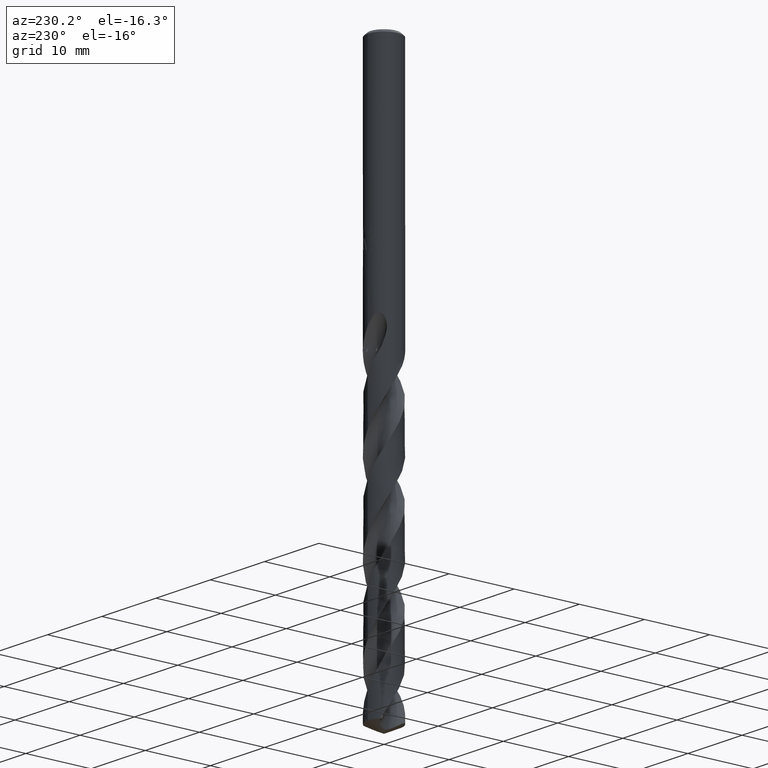
[diagram: clean part render]
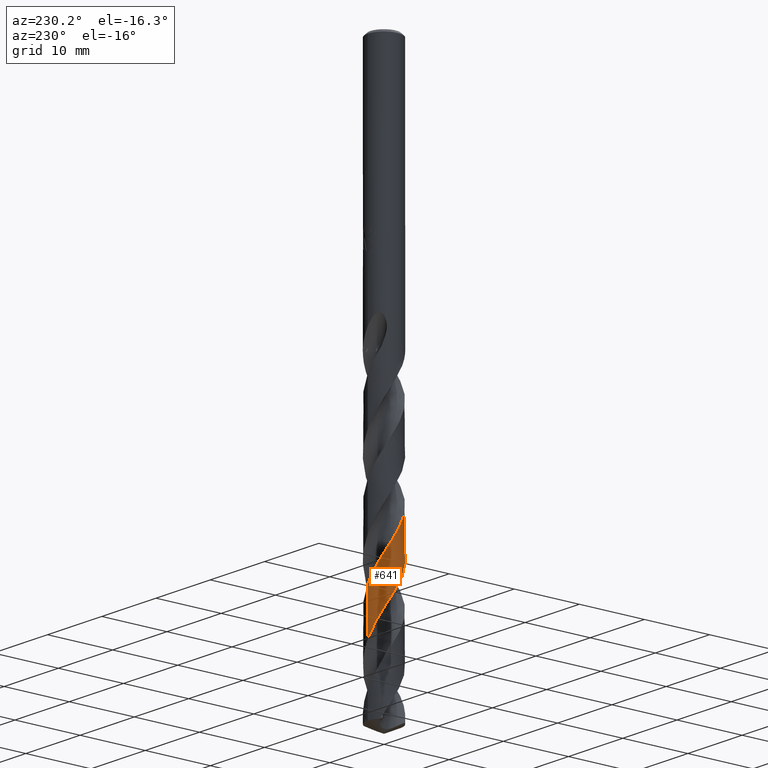
[diagram: same view with one face highlighted and labeled with its STEP entity id]
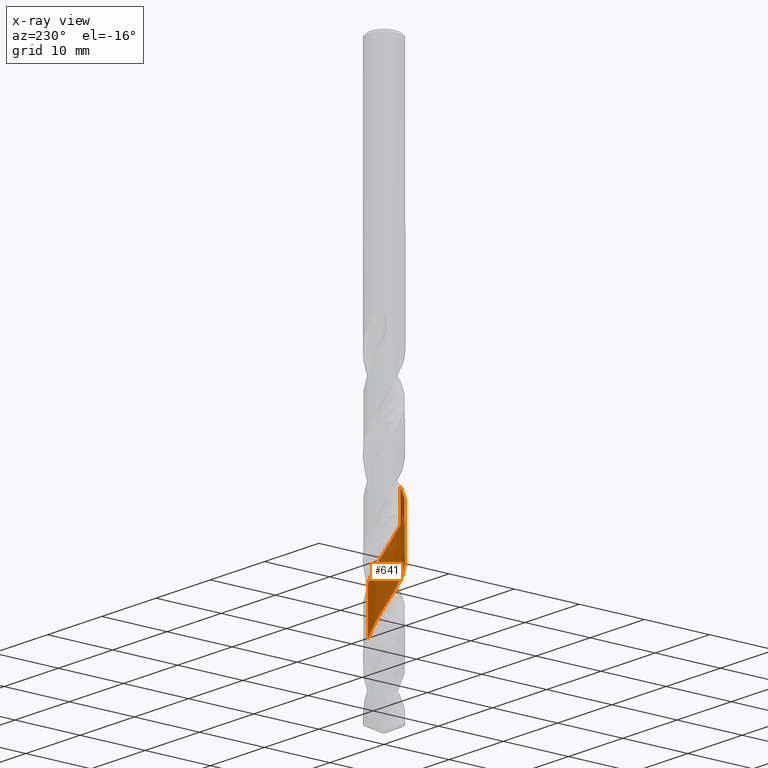
[diagram: x-ray of the same camera — body ghosted, the highlighted face saturated]
A machine part, auxiliary view. The second image highlights one B-rep face of the part: STEP entity #641.
The next image is the same camera in x-ray: the body ghosted, the highlighted face saturated — about 0% of this face is hidden behind the body in this view.
In plain terms, the highlighted conical surface has half-angle 0 deg.
Its self-contained STEP definition (entity closure, byte-faithful):
#325=VERTEX_POINT('',#826);
#335=EDGE_CURVE('',#635,#569,#837,.T.);
#425=EDGE_CURVE('',#569,#517,#937,.T.);
#517=VERTEX_POINT('',#1039);
#569=VERTEX_POINT('',#1093);
#571=EDGE_CURVE('',#517,#325,#1095,.T.);
#635=VERTEX_POINT('',#1167);
#641=ADVANCED_FACE('',(#1174),#1175,.T.);
#727=EDGE_CURVE('',#325,#635,#1266,.T.);
#826=CARTESIAN_POINT('',(6.06419916870673E-015,2.49997813426346,-74.8122386920678));
#837=LINE('',#2709,#2710);
#937=B_SPLINE_CURVE_WITH_KNOTS('',3,(#4323,#4324,#4325,#4326,#4327,#4328,#4329,#4330,#4331,#4332,#4333,#4334,#4335,#4336,#4337,#4338,#4339,#4340,#4341,#4342,#4343,#4344,#4345,#4346,#4347,#4348,#4349,#4350,#4351,#4352,#4353,#4354,#4355,#4356,#4357,#4358,#4359,#4360,#4361,#4362,#4363,#4364,#4365,#4366,#4367,#4368,#4369,#4370,#4371,#4372,#4373,#4374,#4375,#4376,#4377,#4378,#4379,#4380,#4381,#4382,#4383,#4384,#4385,#4386,#4387,#4388,#4389,#4390,#4391,#4392,#4393,#4394,#4395,#4396,#4397,#4398,#4399,#4400,#4401,#4402,#4403,#4404,#4405,#4406,#4407,#4408,#4409,#4410,#4411,#4412,#4413,#4414,#4415,#4416,#4417,#4418,#4419,#4420,#4421,#4422,#4423,#4424,#4425,#4426,#4427,#4428,#4429,#4430,#4431,#4432,#4433,#4434,#4435,#4436,#4437,#4438,#4439,#4440,#4441,#4442,#4443,#4444,#4445,#4446,#4447,#4448,#4449,#4450,#4451,#4452,#4453,#4454,#4455,#4456,#4457,#4458,#4459,#4460,#4461,#4462,#4463,#4464,#4465,#4466,#4467,#4468,#4469,#4470,#4471,#4472,#4473,#4474,#4475,#4476,#4477,#4478,#4479,#4480,#4481,#4482,#4483,#4484,#4485,#4486,#4487,#4488,#4489,#4490,#4491,#4492,#4493,#4494,#4495,#4496,#4497,#4498,#4499,#4500,#4501,#4502,#4503,#4504),.UNSPECIFIED.,.F.,.F.,(4,2,2,2,2,2,2,2,2,2,2,2,2,2,2,2,2,2,2,2,2,2,2,2,2,2,2,2,2,2,2,2,2,2,2,2,2,2,2,2,2,2,2,2,2,2,2,2,2,2,2,2,2,2,2,2,2,2,2,2,2,2,2,2,2,2,2,2,2,2,2,2,2,2,2,2,2,2,2,2,2,2,2,2,2,2,2,2,2,2,4),(0.0,0.130197631597293,0.177790375418525,0.203528378654914,0.220477773872273,0.234485518982447,0.245967376818644,0.255309320129475,0.262862450857812,0.268940526818085,0.273826370375434,0.277656988226119,0.28040462139779,0.282358492877119,0.283748032503972,0.558711848054427,0.620112229035758,0.66020050533253,0.692524611861151,0.729355097996615,0.792330242652871,0.833643491150822,0.90136712810871,1.15381638451864,1.40619879144719,1.58774943225116,1.67380145157983,1.85338326381108,2.29506274989266,4.13542113649811,4.96334490265507,5.13842884308801,6.44867895445249,6.90062768348101,8.31110242535678,8.66154688165764,9.47830686493295,9.91669056713091,10.3010288166517,11.0687177591685,11.487140497879,11.9325918875694,13.3467270692174,13.5235617743511,14.7891882667677,15.6595893505036,16.4757748797086,17.4184916380108,18.2403896256352,18.6566947326735,20.0998663479402,20.268239373517,21.5913512422743,22.009969477056,23.451942533556,23.6204932312231,24.9415752328202,25.3615535010622,26.8008522597422,26.9698694260146,28.2850005759543,28.7098669672697,30.1405153868371,30.3115955703709,31.6115076259884,32.0517969428733,33.46757652367,33.6426916309841,34.9139361878587,35.7635147679752,36.5774703216238,37.5276410399712,38.3879143149921,38.7797382426625,39.5339938987102,39.9728243202163,40.416947235172,41.8283479136796,42.004411793605,43.2686182732748,44.2203228609047,45.0403307403411,45.4528708047033,46.9002222196363,46.9837916618276,48.1840259256829,49.1956678615136,49.9663908452199,50.5464318562699,51.4202888370663,52.2992951524614),.UNSPECIFIED.);
#1039=CARTESIAN_POINT('',(2.63596050081013E-012,2.49996328291561,-68.0052376304444));
#1093=CARTESIAN_POINT('',(-3.39961717213199E-015,-2.49993510164426,-55.0885686660225));
#1095=LINE('',#6039,#6040);
#1167=CARTESIAN_POINT('',(2.61323161921781E-014,-2.49994995181934,-61.8950321944105));
#1174=FACE_OUTER_BOUND('',#6381,.T.);
#1175=CONICAL_SURFACE('',#6382,2.49995,2.18177545767606E-006);
#1266=B_SPLINE_CURVE_WITH_KNOTS('',3,(#8121,#8122,#8123,#8124,#8125,#8126,#8127,#8128,#8129,#8130,#8131,#8132,#8133,#8134,#8135,#8136,#8137,#8138,#8139,#8140,#8141,#8142,#8143,#8144,#8145,#8146,#8147,#8148,#8149,#8150,#8151,#8152,#8153,#8154,#8155,#8156,#8157,#8158,#8159,#8160,#8161,#8162,#8163,#8164,#8165,#8166,#8167,#8168,#8169,#8170,#8171,#8172,#8173,#8174,#8175,#8176,#8177,#8178,#8179,#8180,#8181,#8182,#8183,#8184,#8185,#8186,#8187,#8188,#8189,#8190,#8191,#8192,#8193,#8194,#8195,#8196,#8197,#8198,#8199,#8200,#8201,#8202,#8203,#8204,#8205,#8206,#8207,#8208,#8209,#8210,#8211,#8212,#8213,#8214,#8215,#8216,#8217,#8218,#8219,#8220,#8221,#8222,#8223,#8224,#8225,#8226,#8227,#8228,#8229,#8230,#8231,#8232,#8233,#8234,#8235,#8236,#8237,#8238,#8239,#8240,#8241,#8242,#8243,#8244,#8245,#8246,#8247,#8248,#8249,#8250,#8251,#8252,#8253,#8254,#8255,#8256,#8257,#8258,#8259,#8260,#8261,#8262,#8263,#8264,#8265,#8266,#8267,#8268,#8269,#8270,#8271,#8272),.UNSPECIFIED.,.F.,.F.,(4,2,2,2,2,2,2,2,2,2,2,2,2,2,2,2,2,2,2,2,2,2,2,2,2,2,2,2,2,2,2,2,2,2,2,2,2,2,2,2,2,2,2,2,2,2,2,2,2,2,2,2,2,2,2,2,2,2,2,2,2,2,2,2,2,2,2,2,2,2,2,2,2,2,2,4),(0.0,0.843083036860588,1.66804282445784,2.51310420094247,3.36250948353427,3.57473575263601,4.20621494279439,5.05257127614349,5.89785712989971,6.74385601963546,7.5918302444258,8.39977143285258,9.25254181030798,10.6686810287159,10.7272746588148,11.575739021556,12.0032047005457,12.8123644906255,13.6553569071975,14.4955106262557,15.3378687253484,16.1806478066286,17.0056956403603,17.8521640919949,18.6591214785344,19.5098573303961,20.860202957894,21.0456268163275,22.6323398870029,22.7119034527559,23.6628279853309,24.1115032277236,24.7998938984736,25.6840532398659,26.4218651969014,27.1475165215694,27.576667590082,28.2372125115376,29.0830022235292,29.9283103887265,30.7721237465979,31.6200638698542,32.4168024920405,33.2700916043716,34.6445708681989,34.8475123917744,35.8446680852979,36.6982869442173,38.0325926262055,38.2387508842362,39.0559557685727,39.486589187036,40.3055398471277,41.1548327724152,42.001099703417,42.8865140762626,43.7701736690633,44.6594901591196,45.4755241083576,46.3641190384269,47.2069840287452,47.8579505574661,49.2243268577386,49.7335638821883,50.6245422306346,51.8853836984474,52.205447066137,52.5524571176508,52.7472785827703,52.8413427042817,52.8776550400333,52.9128715006063,52.9617799805844,53.0794527068834,53.2493143121959,53.4170217836426),.UNSPECIFIED.);
#2709=CARTESIAN_POINT('',(3.0619483779913E-016,-2.49995,-61.9171154273063));
#2710=VECTOR('',#8698,1.0);
#4323=CARTESIAN_POINT('',(-1.73762264421359,1.79726670554439,-39.005));
#4324=CARTESIAN_POINT('',(-1.72221670661323,1.81216149650025,-39.042739816691));
#4325=CARTESIAN_POINT('',(-1.70656102461707,1.82691528511933,-39.0805299842278));
#4326=CARTESIAN_POINT('',(-1.68477385876549,1.84691666772539,-39.1320841262693));
#4327=CARTESIAN_POINT('',(-1.6789060842834,1.85225247359187,-39.1458701178836));
#4328=CARTESIAN_POINT('',(-1.6697996599733,1.86045409263797,-39.16710309689));
#4329=CARTESIAN_POINT('',(-1.66659219316597,1.8633279314581,-39.1745512616361));
#4330=CARTESIAN_POINT('',(-1.66125188766608,1.86808786802699,-39.1869001820111));
#4331=CARTESIAN_POINT('',(-1.65912641310457,1.86997586785116,-39.1918015907514));
#4332=CARTESIAN_POINT('',(-1.65523448015805,1.87342108110298,-39.200751411721));
#4333=CARTESIAN_POINT('',(-1.65346990458892,1.87497868468534,-39.2047998386516));
#4334=CARTESIAN_POINT('',(-1.65025218066674,1.8778109045013,-39.2121649762184));
#4335=CARTESIAN_POINT('',(-1.6488003483175,1.87908581774932,-39.215481772523));
#4336=CARTESIAN_POINT('',(-1.64616271840737,1.88139661038003,-39.2214959993936));
#4337=CARTESIAN_POINT('',(-1.6449778217933,1.88243270842696,-39.2241935327113));
#4338=CARTESIAN_POINT('',(-1.64283190381679,1.88430556598918,-39.2290712419415));
#4339=CARTESIAN_POINT('',(-1.64187148763677,1.88514248135961,-39.2312515114553));
#4340=CARTESIAN_POINT('',(-1.64013624782503,1.88665225092974,-39.2351857053183));
#4341=CARTESIAN_POINT('',(-1.63936182354781,1.887325212978,-39.2369397046548));
#4342=CARTESIAN_POINT('',(-1.6379636056153,1.88853873047696,-39.2401032795015));
#4343=CARTESIAN_POINT('',(-1.63734007001041,1.88907935808849,-39.2415129099145));
#4344=CARTESIAN_POINT('',(-1.63622685223591,1.89004359179572,-39.2440274816334));
#4345=CARTESIAN_POINT('',(-1.63573735003914,1.8904672504433,-39.2451324665869));
#4346=CARTESIAN_POINT('',(-1.63489625413791,1.89119463795862,-39.2470298913139));
#4347=CARTESIAN_POINT('',(-1.63454479837524,1.89149840902178,-39.247822368982));
#4348=CARTESIAN_POINT('',(-1.63394317133336,1.89201811570657,-39.2491783099705));
#4349=CARTESIAN_POINT('',(-1.63369307208016,1.8922340737195,-39.2497417939562));
#4350=CARTESIAN_POINT('',(-1.63326498409915,1.89260357491047,-39.2507059733344));
#4351=CARTESIAN_POINT('',(-1.63308703161424,1.89275712958944,-39.2511066796655));
#4352=CARTESIAN_POINT('',(-1.59768827460311,1.92329390340581,-39.3307973432858));
#4353=CARTESIAN_POINT('',(-1.56173305937483,1.95263587298223,-39.4079897390383));
#4354=CARTESIAN_POINT('',(-1.51529937822348,1.9883379022199,-39.5035335497319));
#4355=CARTESIAN_POINT('',(-1.50676261698311,1.99481519629019,-39.5209409171126));
#4356=CARTESIAN_POINT('',(-1.49253845752841,2.00546359211822,-39.5497064850051));
#4357=CARTESIAN_POINT('',(-1.48689483831781,2.00965156675049,-39.5610584803617));
#4358=CARTESIAN_POINT('',(-1.47665217056582,2.01718539954671,-39.5815589911362));
#4359=CARTESIAN_POINT('',(-1.47206439421097,2.02053587319393,-39.5907046804752));
#4360=CARTESIAN_POINT('',(-1.46221438134686,2.02767792271406,-39.6102676400707));
#4361=CARTESIAN_POINT('',(-1.45694946715399,2.03146429123218,-39.6206800899994));
#4362=CARTESIAN_POINT('',(-1.44262880126524,2.04167882385561,-39.6488936967793));
#4363=CARTESIAN_POINT('',(-1.43354321911975,2.04806853252535,-39.6666768181196));
#4364=CARTESIAN_POINT('',(-1.4184137142236,2.05855855621964,-39.6961336551899));
#4365=CARTESIAN_POINT('',(-1.41240151228854,2.06268827218703,-39.7077990137815));
#4366=CARTESIAN_POINT('',(-1.39648492121125,2.07351896928099,-39.7385934417484));
#4367=CARTESIAN_POINT('',(-1.38645572617353,2.0802398815805,-39.7579183248476));
#4368=CARTESIAN_POINT('',(-1.33825285990963,2.11202777054569,-39.8507141383401));
#4369=CARTESIAN_POINT('',(-1.29978396981601,2.13590606630933,-39.9242667126236));
#4370=CARTESIAN_POINT('',(-1.22212041601827,2.18127378238192,-40.0713014689037));
#4371=CARTESIAN_POINT('',(-1.18278949190161,2.20284394852245,-40.1450416580004));
#4372=CARTESIAN_POINT('',(-1.11440699198502,2.23800040903236,-40.271726980402));
#4373=CARTESIAN_POINT('',(-1.08552743806689,2.25214960728027,-40.3247777748598));
#4374=CARTESIAN_POINT('',(-1.04258645617371,2.27217096999321,-40.4029347765147));
#4375=CARTESIAN_POINT('',(-1.02871718069278,2.27848388848263,-40.4280691572117));
#4376=CARTESIAN_POINT('',(-0.985721199758221,2.29758172066474,-40.5056420558515));
#4377=CARTESIAN_POINT('',(-0.956390307373772,2.30994541254933,-40.5580870917244));
#4378=CARTESIAN_POINT('',(-0.854118629135482,2.35077209101613,-40.7395141280588));
#4379=CARTESIAN_POINT('',(-0.780038371071866,2.37638508490807,-40.8683905598234));
#4380=CARTESIAN_POINT('',(-0.391432538179647,2.49058322403104,-41.5344808305209));
#4381=CARTESIAN_POINT('',(-0.0630625100315316,2.52034469056646,-42.0661903329948));
#4382=CARTESIAN_POINT('',(0.407673896650343,2.47081245354854,-42.8452549168541));
#4383=CARTESIAN_POINT('',(0.552184835957912,2.44259299250278,-43.0863252914071));
#4384=CARTESIAN_POINT('',(0.723342233396441,2.39317589015248,-43.37902606155));
#4385=CARTESIAN_POINT('',(0.753048459436175,2.38399515515902,-43.4300974857874));
#4386=CARTESIAN_POINT('',(1.003540663322,2.3014320036888,-43.8636612042629));
#4387=CARTESIAN_POINT('',(1.21332446055783,2.19808138166315,-44.2450354799534));
#4388=CARTESIAN_POINT('',(1.47214875305577,2.02207439920012,-44.759480168158));
#4389=CARTESIAN_POINT('',(1.53629159184119,1.9737803199299,-44.8912553479424));
#4390=CARTESIAN_POINT('',(1.7905356432585,1.76245318463879,-45.4351338261247));
#4391=CARTESIAN_POINT('',(1.9580512521412,1.57429487189452,-45.845116565737));
#4392=CARTESIAN_POINT('',(2.12878761136059,1.31214328215734,-46.3592526134436));
#4393=CARTESIAN_POINT('',(2.16078984674653,1.2587449513727,-46.4615272706131));
#4394=CARTESIAN_POINT('',(2.26060142378589,1.07716705364583,-46.8024418545456));
#4395=CARTESIAN_POINT('',(2.31927800540402,0.944235400495884,-47.0407579438678));
#4396=CARTESIAN_POINT('',(2.39123516363674,0.733245077219204,-47.4073162655334));
#4397=CARTESIAN_POINT('',(2.41291591819445,0.658404750126456,-47.5352360417552));
#4398=CARTESIAN_POINT('',(2.44698641352753,0.516252324623708,-47.7754713307098));
#4399=CARTESIAN_POINT('',(2.46016832525397,0.449249925485111,-47.8876076944916));
#4400=CARTESIAN_POINT('',(2.49140905057523,0.247104508668404,-48.2241273681789));
#4401=CARTESIAN_POINT('',(2.50117889118384,0.110895862590353,-48.4482207113245));
#4402=CARTESIAN_POINT('',(2.49903548278262,-0.0997559728324021,-48.7946820722752));
#4403=CARTESIAN_POINT('',(2.49496599382,-0.174014583583198,-48.9168126070329));
#4404=CARTESIAN_POINT('',(2.47973823146944,-0.326764002540473,-49.1691012280555));
#4405=CARTESIAN_POINT('',(2.46815300371972,-0.405082050201365,-49.2990266728556));
#4406=CARTESIAN_POINT('',(2.40438658610379,-0.72912014082532,-49.8422776280904));
#4407=CARTESIAN_POINT('',(2.31900763107557,-0.966950971391699,-50.253483788048));
#4408=CARTESIAN_POINT('',(2.18462690854884,-1.21573881348088,-50.7181896536064));
#4409=CARTESIAN_POINT('',(2.16917409020646,-1.24310069734883,-50.7698223265135));
#4410=CARTESIAN_POINT('',(2.03895833151078,-1.46384744578647,-51.1912519161833));
#4411=CARTESIAN_POINT('',(1.89904283107407,-1.64130799677193,-51.5600832342174));
#4412=CARTESIAN_POINT('',(1.62599796550374,-1.90518114583074,-52.1841707241126));
#4413=CARTESIAN_POINT('',(1.50504519965475,-2.0020941588681,-52.4379204409031));
#4414=CARTESIAN_POINT('',(1.25496593706358,-2.16696189499118,-52.9308795226523));
#4415=CARTESIAN_POINT('',(1.12717723251097,-2.23610787064535,-53.1689608241147));
#4416=CARTESIAN_POINT('',(0.840277397886074,-2.36044058887058,-53.6828690841316));
#4417=CARTESIAN_POINT('',(0.680263431271062,-2.41141851660171,-53.9576909828163));
#4418=CARTESIAN_POINT('',(0.373612967246082,-2.47616462439223,-54.4734514205136));
#4419=CARTESIAN_POINT('',(0.22835119082907,-2.49376767525801,-54.7131340762914));
#4420=CARTESIAN_POINT('',(0.00834343290483543,-2.50101645484482,-55.0748993465587));
#4421=CARTESIAN_POINT('',(-0.0656690838418028,-2.50016700375343,-55.1963987942213));
#4422=CARTESIAN_POINT('',(-0.395526756050227,-2.48173047076951,-55.7398717076355));
#4423=CARTESIAN_POINT('',(-0.647942333710862,-2.4281065383968,-56.1595225862856));
#4424=CARTESIAN_POINT('',(-0.915801709058703,-2.32634816743705,-56.630447153865));
#4425=CARTESIAN_POINT('',(-0.943585818175313,-2.31521795786678,-56.6796371881106));
#4426=CARTESIAN_POINT('',(-1.18785068100543,-2.21224052885021,-57.1155983580127));
#4427=CARTESIAN_POINT('',(-1.39066912044082,-2.09072080320497,-57.5010620189309));
#4428=CARTESIAN_POINT('',(-1.6313753991408,-1.89574907830656,-58.0101433890279));
#4429=CARTESIAN_POINT('',(-1.68708333286668,-1.84634629218452,-58.1323642523741));
#4430=CARTESIAN_POINT('',(-1.92447209779205,-1.61610922166441,-58.6763757643017));
#4431=CARTESIAN_POINT('',(-2.08000781301846,-1.41034495613408,-59.095847668128));
#4432=CARTESIAN_POINT('',(-2.21573759616317,-1.15807171847987,-59.5666578035117));
#4433=CARTESIAN_POINT('',(-2.22946223388483,-1.13142440322756,-59.6159186452128));
#4434=CARTESIAN_POINT('',(-2.34648567177155,-0.893817224105418,-60.0515088335608));
#4435=CARTESIAN_POINT('',(-2.42009573431447,-0.669415617123583,-60.4365399549279));
#4436=CARTESIAN_POINT('',(-2.47437007882797,-0.364438674713616,-60.945625441612));
#4437=CARTESIAN_POINT('',(-2.48415247435962,-0.290351274328608,-61.0682901977568));
#4438=CARTESIAN_POINT('',(-2.51271198241723,0.0390132611325185,-61.6121296163975));
#4439=CARTESIAN_POINT('',(-2.49554255420685,0.295996515614908,-62.0310003842895));
#4440=CARTESIAN_POINT('',(-2.43304597717549,0.575280973828537,-62.5013496646307));
#4441=CARTESIAN_POINT('',(-2.42595115632618,0.604501251341264,-62.5507655030873));
#4442=CARTESIAN_POINT('',(-2.35904532331097,0.859878393294402,-62.9849233780811));
#4443=CARTESIAN_POINT('',(-2.26825521570125,1.07683713030169,-63.368399574982));
#4444=CARTESIAN_POINT('',(-2.10993032929419,1.34301307972118,-63.8773796930283));
#4445=CARTESIAN_POINT('',(-2.06835741596617,1.40619422643805,-64.001517826608));
#4446=CARTESIAN_POINT('',(-1.87462160440596,1.67342082846006,-64.544473456224));
#4447=CARTESIAN_POINT('',(-1.69457786037828,1.85554610381067,-64.9610454573014));
#4448=CARTESIAN_POINT('',(-1.46562777375887,2.02550020329468,-65.4296582983506));
#4449=CARTESIAN_POINT('',(-1.44085100205436,2.04319948511888,-65.4796954506453));
#4450=CARTESIAN_POINT('',(-1.22510192491221,2.19144495118986,-65.9101798608721));
#4451=CARTESIAN_POINT('',(-1.01709335979765,2.29540759107824,-66.2894506933868));
#4452=CARTESIAN_POINT('',(-0.723425608659897,2.39428593765472,-66.7987087489389));
#4453=CARTESIAN_POINT('',(-0.648016612136586,2.41578529351625,-66.9273958080656));
#4454=CARTESIAN_POINT('',(-0.326461645487026,2.49132786736918,-67.4707356865367));
#4455=CARTESIAN_POINT('',(-0.0737527242732716,2.51156382455158,-67.8832386958479));
#4456=CARTESIAN_POINT('',(0.208862845223792,2.49141909933243,-68.3488771681882));
#4457=CARTESIAN_POINT('',(0.239919314806277,2.48862040350351,-68.4001131934298));
#4458=CARTESIAN_POINT('',(0.495916847480743,2.46071530026289,-68.8235558285211));
#4459=CARTESIAN_POINT('',(0.716641853353667,2.40572986912749,-69.1947501146174));
#4460=CARTESIAN_POINT('',(1.06750982792813,2.26564852191887,-69.8156681680665));
#4461=CARTESIAN_POINT('',(1.20261154173953,2.19691254931507,-70.0638870850439));
#4462=CARTESIAN_POINT('',(1.45324678708353,2.03933848806931,-70.5511093518461));
#4463=CARTESIAN_POINT('',(1.56900703191907,1.9516885006185,-70.7890334461986));
#4464=CARTESIAN_POINT('',(1.80212247172258,1.74093564446014,-71.3055303634416));
#4465=CARTESIAN_POINT('',(1.91577266050352,1.61501339532018,-71.5830792757152));
#4466=CARTESIAN_POINT('',(2.10635537522808,1.35520131159896,-72.1133250686168));
#4467=CARTESIAN_POINT('',(2.18542522855754,1.22362906706294,-72.3646472847902));
#4468=CARTESIAN_POINT('',(2.28228613779477,1.02269760878447,-72.7312229219892));
#4469=CARTESIAN_POINT('',(2.30993783939124,0.95860434813001,-72.8458341048135));
#4470=CARTESIAN_POINT('',(2.38285784896317,0.768044456054035,-73.1814961817981));
#4471=CARTESIAN_POINT('',(2.42067304575798,0.638950270895571,-73.4022630120648));
#4472=CARTESIAN_POINT('',(2.46379748321415,0.430914866808413,-73.7516849539391));
#4473=CARTESIAN_POINT('',(2.47606681303748,0.353675850135863,-73.8801029801118));
#4474=CARTESIAN_POINT('',(2.49343299137673,0.197323457570824,-74.138643625548));
#4475=CARTESIAN_POINT('',(2.49842655025754,0.11833724740768,-74.2685235345718));
#4476=CARTESIAN_POINT('',(2.50361696127502,-0.212028690074959,-74.8120174472951));
#4477=CARTESIAN_POINT('',(2.46964460545949,-0.462611655602074,-75.2235047295356));
#4478=CARTESIAN_POINT('',(2.38998956653228,-0.734053457318309,-75.6884090617514));
#4479=CARTESIAN_POINT('',(2.38059135162283,-0.76398259570007,-75.7399522537617));
#4480=CARTESIAN_POINT('',(2.29912922837706,-1.00728981540057,-76.1618523305745));
#4481=CARTESIAN_POINT('',(2.19905879641271,-1.21029923289694,-76.5312331693735));
#4482=CARTESIAN_POINT('',(1.97832805308253,-1.53782621625848,-77.180367250265));
#4483=CARTESIAN_POINT('',(1.86949629828328,-1.66842020381197,-77.4585173795544));
#4484=CARTESIAN_POINT('',(1.6439804435951,-1.88906776986853,-77.9777095952023));
#4485=CARTESIAN_POINT('',(1.53080803865429,-1.98189786377739,-78.2174647476492));
#4486=CARTESIAN_POINT('',(1.34939180272698,-2.10582072948709,-78.5785212171314));
#4487=CARTESIAN_POINT('',(1.28689502606203,-2.14458270213718,-78.699239528728));
#4488=CARTESIAN_POINT('',(0.997913816938849,-2.30663893388208,-79.2442590222251));
#4489=CARTESIAN_POINT('',(0.754757244355233,-2.39726068527552,-79.6661830327054));
#4490=CARTESIAN_POINT('',(0.487399419056475,-2.45206285991595,-80.1147212306983));
#4491=CARTESIAN_POINT('',(0.472780643703383,-2.45492345011449,-80.1392017747409));
#4492=CARTESIAN_POINT('',(0.247817072799052,-2.49686024226897,-80.5154073859433));
#4493=CARTESIAN_POINT('',(0.0332661479982795,-2.50891418187097,-80.8664953678831));
#4494=CARTESIAN_POINT('',(-0.360100964732818,-2.48048967111535,-81.5147549047247));
#4495=CARTESIAN_POINT('',(-0.537999352536539,-2.44806080628076,-81.8102888982651));
#4496=CARTESIAN_POINT('',(-0.842411533867151,-2.35778846142502,-82.332861044268));
#4497=CARTESIAN_POINT('',(-0.97066513566138,-2.30795799475805,-82.5584218642207));
#4498=CARTESIAN_POINT('',(-1.18722051065881,-2.20254029984853,-82.9543158901402));
#4499=CARTESIAN_POINT('',(-1.27728483860836,-2.15155985254222,-83.1240528762311));
#4500=CARTESIAN_POINT('',(-1.49442631319774,-2.01020582967081,-83.5502876526436));
#4501=CARTESIAN_POINT('',(-1.61676896218613,-1.9132007221102,-83.8060504707951));
#4502=CARTESIAN_POINT('',(-1.8425335984295,-1.69695065717532,-84.3198049411228));
#4503=CARTESIAN_POINT('',(-1.9451881871655,-1.57820759577199,-84.5763849624538));
#4504=CARTESIAN_POINT('',(-2.03601740058077,-1.45073538060265,-84.8342308546126));
#6039=CARTESIAN_POINT('',(-3.06096093048521E-016,2.49995,-61.9171154273063));
#6040=VECTOR('',#9001,1.0);
#6381=EDGE_LOOP('',(#9111,#9112,#9113,#9114));
#6382=AXIS2_PLACEMENT_3D('',#9115,#9116,#9117);
#8121=CARTESIAN_POINT('',(1.61904416076535,-1.9049136477782,-84.8342308546125));
#8122=CARTESIAN_POINT('',(1.73030244814335,-1.81035115124265,-84.5941140412139));
#8123=CARTESIAN_POINT('',(1.83285811930141,-1.70643502924943,-84.3523628527372));
#8124=CARTESIAN_POINT('',(2.01694540433821,-1.48401811648047,-83.8771588796038));
#8125=CARTESIAN_POINT('',(2.09844004240076,-1.36637079654297,-83.6435267569613));
#8126=CARTESIAN_POINT('',(2.24223577332492,-1.11525835858967,-83.1680450926203));
#8127=CARTESIAN_POINT('',(2.30364666396395,-0.982153966939345,-82.9264985282156));
#8128=CARTESIAN_POINT('',(2.40279533534872,-0.705836110887262,-82.4440535652317));
#8129=CARTESIAN_POINT('',(2.4401667487659,-0.563215843755094,-82.2035854673735));
#8130=CARTESIAN_POINT('',(2.4709277550971,-0.381884603552574,-81.9013658096328));
#8131=CARTESIAN_POINT('',(2.47627126238414,-0.345535919034397,-81.840953859433));
#8132=CARTESIAN_POINT('',(2.49431217102898,-0.200743885512094,-81.600616464541));
#8133=CARTESIAN_POINT('',(2.50071407437441,-0.0915018998261522,-81.4199131246624));
#8134=CARTESIAN_POINT('',(2.49887375009273,0.164649901229759,-80.9986717130952));
#8135=CARTESIAN_POINT('',(2.48491029374494,0.311008741431206,-80.7588451837966));
#8136=CARTESIAN_POINT('',(2.43146650779031,0.599513544427188,-80.2768715791664));
#8137=CARTESIAN_POINT('',(2.39217949533133,0.740853991133344,-80.0349574262476));
#8138=CARTESIAN_POINT('',(2.28929284592933,1.01516332129763,-79.5530813460718));
#8139=CARTESIAN_POINT('',(2.2258437570138,1.14763909574663,-79.3134486207145));
#8140=CARTESIAN_POINT('',(2.07618475433065,1.40035999745056,-78.8310691713891));
#8141=CARTESIAN_POINT('',(1.99036772151206,1.51983914081443,-78.5885339435752));
#8142=CARTESIAN_POINT('',(1.80336669430812,1.73705268660444,-78.1169892697669));
#8143=CARTESIAN_POINT('',(1.70333744702727,1.83525983389419,-77.888153187692));
#8144=CARTESIAN_POINT('',(1.48172280823919,2.0189765556797,-77.4155817413765));
#8145=CARTESIAN_POINT('',(1.35994940332566,2.10289827967466,-77.171936972073));
#8146=CARTESIAN_POINT('',(1.01866764676749,2.29611468028388,-76.5263296656144));
#8147=CARTESIAN_POINT('',(0.789392273683675,2.38459722075898,-76.1295476730423));
#8148=CARTESIAN_POINT('',(0.541547618990627,2.44064101519409,-75.709640224839));
#8149=CARTESIAN_POINT('',(0.531648601878904,2.44281673886276,-75.6928977086942));
#8150=CARTESIAN_POINT('',(0.377567972406155,2.47569350408692,-75.4327469672379));
#8151=CARTESIAN_POINT('',(0.230697212136153,2.49371041504891,-75.1908548248368));
#8152=CARTESIAN_POINT('',(0.00818380098901653,2.50107720796309,-74.8256322092764));
#8153=CARTESIAN_POINT('',(-0.0663826698236577,2.50020599232375,-74.7034302202222));
#8154=CARTESIAN_POINT('',(-0.281504047278668,2.48807506200889,-74.3492702997601));
#8155=CARTESIAN_POINT('',(-0.421190144445067,2.46826809333316,-74.1165069146944));
#8156=CARTESIAN_POINT('',(-0.701697491129894,2.40396754270719,-73.6433414362749));
#8157=CARTESIAN_POINT('',(-0.841676746404797,2.35860892597523,-73.403321610421));
#8158=CARTESIAN_POINT('',(-1.11166687203851,2.2439924741718,-72.921447510487));
#8159=CARTESIAN_POINT('',(-1.24097980186227,2.17513845300398,-72.6798338211212));
#8160=CARTESIAN_POINT('',(-1.48647094031596,2.01538320024675,-72.198138538444));
#8161=CARTESIAN_POINT('',(-1.60214139283383,1.92471795170696,-71.9583844664262));
#8162=CARTESIAN_POINT('',(-1.81638468781675,1.72399511999687,-71.4761702396528));
#8163=CARTESIAN_POINT('',(-1.91434019333429,1.61451120163301,-71.2339279560084));
#8164=CARTESIAN_POINT('',(-2.08808079049964,1.38215893646709,-70.7566638412285));
#8165=CARTESIAN_POINT('',(-2.16401567608146,1.25997125179693,-70.5218985206287));
#8166=CARTESIAN_POINT('',(-2.29581601226844,1.00040046064061,-70.0438827432644));
#8167=CARTESIAN_POINT('',(-2.35071063885926,0.86349997521757,-69.8007788286309));
#8168=CARTESIAN_POINT('',(-2.43376829244568,0.5884443052717,-69.3279404943165));
#8169=CARTESIAN_POINT('',(-2.4629712266778,0.450925154822906,-69.0984211688177));
#8170=CARTESIAN_POINT('',(-2.49893145009938,0.164609517815855,-68.6247599479562));
#8171=CARTESIAN_POINT('',(-2.50426344806369,0.0165329951961172,-68.380749684321));
#8172=CARTESIAN_POINT('',(-2.48426949680438,-0.364845775104878,-67.7518924880687));
#8173=CARTESIAN_POINT('',(-2.43919499883946,-0.59566883203089,-67.371676214433));
#8174=CARTESIAN_POINT('',(-2.35231147117961,-0.847033980215113,-66.9328276351601));
#8175=CARTESIAN_POINT('',(-2.34125502382768,-0.877131670072035,-66.8798128601806));
#8176=CARTESIAN_POINT('',(-2.22991643351987,-1.1630825768111,-66.3733938247632));
#8177=CARTESIAN_POINT('',(-2.08881431046497,-1.40069740033101,-65.9289531614581));
#8178=CARTESIAN_POINT('',(-1.90315775254716,-1.62110101119655,-65.4530423820499));
#8179=CARTESIAN_POINT('',(-1.89422041041239,-1.63153506885567,-65.4303323507755));
#8180=CARTESIAN_POINT('',(-1.77717825242041,-1.76591774582615,-65.1360075945181));
#8181=CARTESIAN_POINT('',(-1.65697632049418,-1.87922977477611,-64.8664027399961));
#8182=CARTESIAN_POINT('',(-1.46438601186956,-2.02766552660015,-64.4674875530462));
#8183=CARTESIAN_POINT('',(-1.40052301774714,-2.07228396186557,-64.339771757393));
#8184=CARTESIAN_POINT('',(-1.23386203241548,-2.17752082924438,-64.0154184728567));
#8185=CARTESIAN_POINT('',(-1.12857589335572,-2.23390916248337,-63.8182088146355));
#8186=CARTESIAN_POINT('',(-0.879474958244578,-2.34516918084716,-63.3695489911607));
#8187=CARTESIAN_POINT('',(-0.733937186440684,-2.39471300951342,-63.1188960222698));
#8188=CARTESIAN_POINT('',(-0.460220367101433,-2.46055993151649,-62.6563142566908));
#8189=CARTESIAN_POINT('',(-0.333786811847717,-2.48086237343599,-62.4449991128705));
#8190=CARTESIAN_POINT('',(-0.0811343017284639,-2.50179342911042,-62.0276856529627));
#8191=CARTESIAN_POINT('',(0.0448783175295246,-2.50272015119227,-61.8216789407699));
#8192=CARTESIAN_POINT('',(0.244910246360973,-2.48903919237687,-61.4927068074285));
#8193=CARTESIAN_POINT('',(0.318893027007876,-2.4806403100062,-61.3705906606815));
#8194=CARTESIAN_POINT('',(0.505294584563864,-2.45102172666067,-61.0598886520706));
#8195=CARTESIAN_POINT('',(0.616933108648151,-2.42533658901344,-60.8707317871966));
#8196=CARTESIAN_POINT('',(0.866917676799457,-2.34940571955788,-60.4410909078613));
#8197=CARTESIAN_POINT('',(1.00329462572207,-2.29448912451963,-60.2012609596228));
#8198=CARTESIAN_POINT('',(1.26486263486019,-2.16133596955329,-59.7191361488206));
#8199=CARTESIAN_POINT('',(1.38932455042089,-2.08349859703476,-59.4770649407651));
#8200=CARTESIAN_POINT('',(1.62298136585213,-1.90710238112322,-58.9954999234316));
#8201=CARTESIAN_POINT('',(1.73179943833228,-1.80887245853088,-58.756332717378));
#8202=CARTESIAN_POINT('',(1.93158599662554,-1.59384105298024,-58.2742945713386));
#8203=CARTESIAN_POINT('',(2.02187706050298,-1.47759413258714,-58.031628695717));
#8204=CARTESIAN_POINT('',(2.17615859502001,-1.23817380736843,-57.5630016981601));
#8205=CARTESIAN_POINT('',(2.24122062465827,-1.1161215669973,-57.3371726659222));
#8206=CARTESIAN_POINT('',(2.35446445616902,-0.853285643908993,-56.8673768752208));
#8207=CARTESIAN_POINT('',(2.40075415139404,-0.712628651629101,-56.6234829927144));
#8208=CARTESIAN_POINT('',(2.4884195366083,-0.337541307388953,-55.9892483754753));
#8209=CARTESIAN_POINT('',(2.50917077690156,-0.0998109581607474,-55.6036085780103));
#8210=CARTESIAN_POINT('',(2.49426423102111,0.171894669697996,-55.1543774642051));
#8211=CARTESIAN_POINT('',(2.49161437931377,0.206800190776472,-55.096515099096));
#8212=CARTESIAN_POINT('',(2.47153421484594,0.413469161512555,-54.7540247575908));
#8213=CARTESIAN_POINT('',(2.43709810114689,0.583252139455534,-54.4717560626605));
#8214=CARTESIAN_POINT('',(2.34091777860693,0.889788491340023,-53.9444224893597));
#8215=CARTESIAN_POINT('',(2.28413341580432,1.02674291244876,-53.700300824262));
#8216=CARTESIAN_POINT('',(2.1088663755946,1.36220987593325,-53.0769894507557));
#8217=CARTESIAN_POINT('',(1.97426735356137,1.55081795869802,-52.7022145058169));
#8218=CARTESIAN_POINT('',(1.79138446705262,1.74409129171274,-52.2633504981734));
#8219=CARTESIAN_POINT('',(1.76640319922101,1.76938631751861,-52.2045712737153));
#8220=CARTESIAN_POINT('',(1.63973719711523,1.8922913248763,-51.9132670631364));
#8221=CARTESIAN_POINT('',(1.53026971512712,1.98190482464706,-51.6819277663936));
#8222=CARTESIAN_POINT('',(1.35200818918077,2.1041082280486,-51.327374228679));
#8223=CARTESIAN_POINT('',(1.28867670104466,2.14347676251919,-51.2051728027187));
#8224=CARTESIAN_POINT('',(1.10022125760293,2.24926747110501,-50.8499372783875));
#8225=CARTESIAN_POINT('',(0.971182656957258,2.30791706090978,-50.6160909854882));
#8226=CARTESIAN_POINT('',(0.699417664272572,2.40457894857158,-50.1418358316872));
#8227=CARTESIAN_POINT('',(0.556977066549205,2.44151127977551,-49.901802763477));
#8228=CARTESIAN_POINT('',(0.267697045732879,2.48985547790531,-49.4199466995143));
#8229=CARTESIAN_POINT('',(0.121661691309001,2.50123855732212,-49.1783654786905));
#8230=CARTESIAN_POINT('',(-0.17755973351125,2.49829688067831,-48.6862414952262));
#8231=CARTESIAN_POINT('',(-0.330121060683982,2.48275199290729,-48.4362104213799));
#8232=CARTESIAN_POINT('',(-0.630284226698555,2.42398038119459,-47.9336667058996));
#8233=CARTESIAN_POINT('',(-0.777047254413305,2.38098892885735,-47.6815078459708));
#8234=CARTESIAN_POINT('',(-1.06196132764591,2.26835685851309,-47.1778469387609));
#8235=CARTESIAN_POINT('',(-1.19934484361935,2.19881113305025,-46.926811708138));
#8236=CARTESIAN_POINT('',(-1.44888282372236,2.04210691666355,-46.4424415658039));
#8237=CARTESIAN_POINT('',(-1.56161347235365,1.95724657779757,-46.2096328405439));
#8238=CARTESIAN_POINT('',(-1.78109174093796,1.76092273511759,-45.7254658918868));
#8239=CARTESIAN_POINT('',(-1.88583769270971,1.64825972916681,-45.4746872841887));
#8240=CARTESIAN_POINT('',(-2.06853812511387,1.4113556312749,-44.9830386365471));
#8241=CARTESIAN_POINT('',(-2.1471389184226,1.28862067424656,-44.7426411469397));
#8242=CARTESIAN_POINT('',(-2.26680683587009,1.06008586979596,-44.3184638096725));
#8243=CARTESIAN_POINT('',(-2.31220991598737,0.957032729364711,-44.134259862079));
#8244=CARTESIAN_POINT('',(-2.43098234091351,0.629044796064647,-43.5617621539102));
#8245=CARTESIAN_POINT('',(-2.47953147705317,0.396652692113111,-43.1729053077258));
#8246=CARTESIAN_POINT('',(-2.50039749844,0.0728804181513978,-42.6406968543515));
#8247=CARTESIAN_POINT('',(-2.50140983123039,-0.0152226515735077,-42.4964958792286));
#8248=CARTESIAN_POINT('',(-2.49142436575676,-0.256995587309512,-42.0990541073084));
#8249=CARTESIAN_POINT('',(-2.47089423473632,-0.409649943533384,-41.8448343927728));
#8250=CARTESIAN_POINT('',(-2.38787340861082,-0.771262737537401,-41.2340958738882));
#8251=CARTESIAN_POINT('',(-2.31165350856511,-0.976563039077852,-40.8795282797894));
#8252=CARTESIAN_POINT('',(-2.18322763098264,-1.21906488017093,-40.432224163357));
#8253=CARTESIAN_POINT('',(-2.15555652986258,-1.26736043646085,-40.3411580276523));
#8254=CARTESIAN_POINT('',(-2.09440833388476,-1.36624451174844,-40.1463268882486));
#8255=CARTESIAN_POINT('',(-2.06135758512512,-1.41552175483071,-40.0447506022626));
#8256=CARTESIAN_POINT('',(-2.00819916937752,-1.48919873717149,-39.8843543237205));
#8257=CARTESIAN_POINT('',(-1.98883775044184,-1.51493999973553,-39.8265189806359));
#8258=CARTESIAN_POINT('',(-1.95981134316263,-1.55205766002821,-39.7402549678193));
#8259=CARTESIAN_POINT('',(-1.95029908254906,-1.56407904397552,-39.7117176458127));
#8260=CARTESIAN_POINT('',(-1.93065400729748,-1.5881300623634,-39.6573887366598));
#8261=CARTESIAN_POINT('',(-1.92508077325515,-1.59488231775848,-39.6423216343997));
#8262=CARTESIAN_POINT('',(-1.91389350436963,-1.60828860951088,-39.6127613384898));
#8263=CARTESIAN_POINT('',(-1.90828776548906,-1.61493707278771,-39.598269808205));
#8264=CARTESIAN_POINT('',(-1.89465431615377,-1.63093239740961,-39.5637931022002));
#8265=CARTESIAN_POINT('',(-1.88653664067192,-1.6403183597695,-39.5438734757317));
#8266=CARTESIAN_POINT('',(-1.85820465807426,-1.67257297039773,-39.4764231041104));
#8267=CARTESIAN_POINT('',(-1.83707819386256,-1.69579021467786,-39.4295631333197));
#8268=CARTESIAN_POINT('',(-1.782463936753,-1.75343271378712,-39.3167024156942));
#8269=CARTESIAN_POINT('',(-1.74782834800999,-1.78807439505559,-39.2518007883633));
#8270=CARTESIAN_POINT('',(-1.67377176869603,-1.85756153505558,-39.1255954377944));
#8271=CARTESIAN_POINT('',(-1.63464326627797,-1.89218410468173,-39.0646428613427));
#8272=CARTESIAN_POINT('',(-1.5930083538373,-1.92660957361547,-39.005));
#8698=DIRECTION('',(-2.67181608808171E-022,2.18177545767433E-006,0.99999999999762));
#9001=DIRECTION('',(-2.67181608808171E-022,2.18177545767433E-006,-0.99999999999762));
#9111=ORIENTED_EDGE('',*,*,#571,.T.);
#9112=ORIENTED_EDGE('',*,*,#727,.T.);
#9113=ORIENTED_EDGE('',*,*,#335,.T.);
#9114=ORIENTED_EDGE('',*,*,#425,.T.);
#9115=CARTESIAN_POINT('',(0.0,0.0,-61.9171154273063));
#9116=DIRECTION('',(0.0,-0.0,-1.0));
#9117=DIRECTION('',(0.0,1.0,0.0));